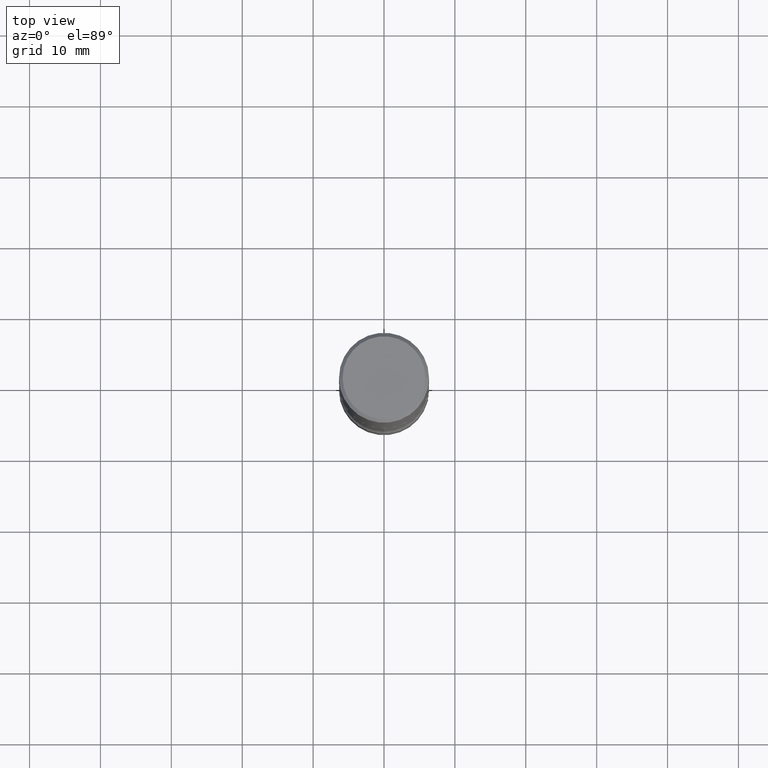
[diagram: clean part render]
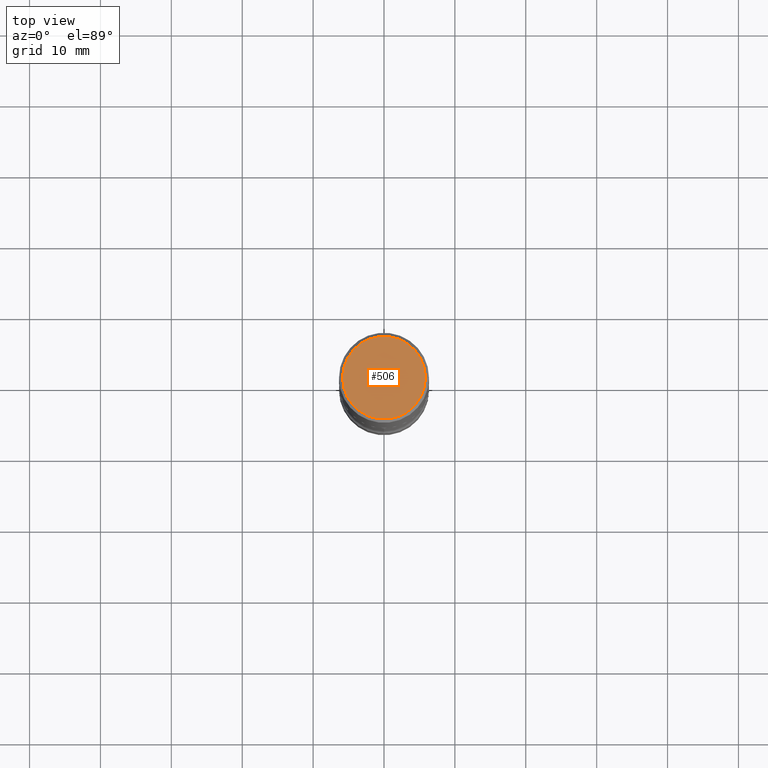
[diagram: same view with one face highlighted and labeled with its STEP entity id]
A machine part, top view. The second image highlights one B-rep face of the part: STEP entity #506.
In plain terms, the highlighted planar face has unit normal (0, -0, -1).
Its self-contained STEP definition (entity closure, byte-faithful):
#9 = EDGE_CURVE ( 'NONE', #544, #20, #139, .T. ) ;
#20 = VERTEX_POINT ( 'NONE', #260 ) ;
#42 = DIRECTION ( 'NONE',  ( 1.000000000000000000, -6.982962677686265922E-15, 4.876225828469305518E-29 ) ) ;
#43 = CARTESIAN_POINT ( 'NONE',  ( -1.043851414335219820E-46, 1.490343170380447200E-32, 4.268512490100411279E-18 ) ) ;
#51 = EDGE_CURVE ( 'NONE', #20, #544, #466, .T. ) ;
#56 = AXIS2_PLACEMENT_3D ( 'NONE', #169, #212, #509 ) ;
#80 = CARTESIAN_POINT ( 'NONE',  ( 0.2300000000000001488, -1.681434332853599997E-15, 4.268512490111905999E-18 ) ) ;
#86 = AXIS2_PLACEMENT_3D ( 'NONE', #43, #552, #42 ) ;
#101 = ORIENTED_EDGE ( 'NONE', *, *, #9, .T. ) ;
#110 = ORIENTED_EDGE ( 'NONE', *, *, #51, .T. ) ;
#128 = EDGE_LOOP ( 'NONE', ( #110, #101 ) ) ;
#131 = CARTESIAN_POINT ( 'NONE',  ( 1.606081415867842251E-15, 0.2300000000000001488, -8.009064516888738702E-16 ) ) ;
#139 = CIRCLE ( 'NONE', #56, 0.2300000000000001488 ) ;
#169 = CARTESIAN_POINT ( 'NONE',  ( -1.043851414335219820E-46, 1.490343170380447200E-32, 4.268512490100411279E-18 ) ) ;
#179 = DIRECTION ( 'NONE',  ( 2.438088387897960049E-29, -3.491481338843145188E-15, -1.000000000000000000 ) ) ;
#212 = DIRECTION ( 'NONE',  ( -2.445468806185136597E-29, 3.491481338843145583E-15, 1.000000000000000000 ) ) ;
#260 = CARTESIAN_POINT ( 'NONE',  ( -0.2300000000000001488, 1.640996229256273703E-15, 4.268512490089056766E-18 ) ) ;
#379 = PLANE ( 'NONE',  #441 ) ;
#441 = AXIS2_PLACEMENT_3D ( 'NONE', #131, #179, #549 ) ;
#466 = CIRCLE ( 'NONE', #86, 0.2300000000000001488 ) ;
#506 = ADVANCED_FACE ( 'NONE', ( #516 ), #379, .F. ) ;
#509 = DIRECTION ( 'NONE',  ( 1.000000000000000000, -6.982962677686265922E-15, 4.876225828469305518E-29 ) ) ;
#516 = FACE_OUTER_BOUND ( 'NONE', #128, .T. ) ;
#544 = VERTEX_POINT ( 'NONE', #80 ) ;
#549 = DIRECTION ( 'NONE',  ( -1.000000000000000000, 6.982962677686265922E-15, -4.876176775795935793E-29 ) ) ;
#552 = DIRECTION ( 'NONE',  ( -2.445468806185136597E-29, 3.491481338843145583E-15, 1.000000000000000000 ) ) ;